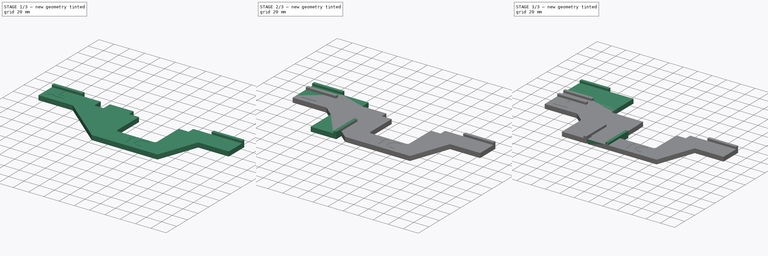
[diagram: build sequence overview — one tinted view per stage of 3, left to right]
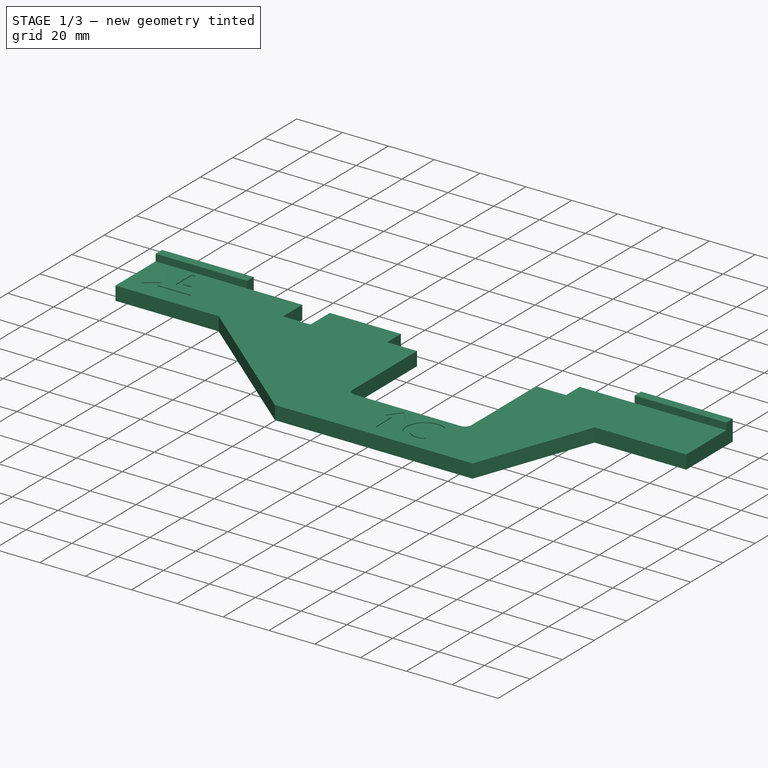
[diagram: stage 1 of 3 — iso view after this stage's code; geometry added in this stage tinted green]
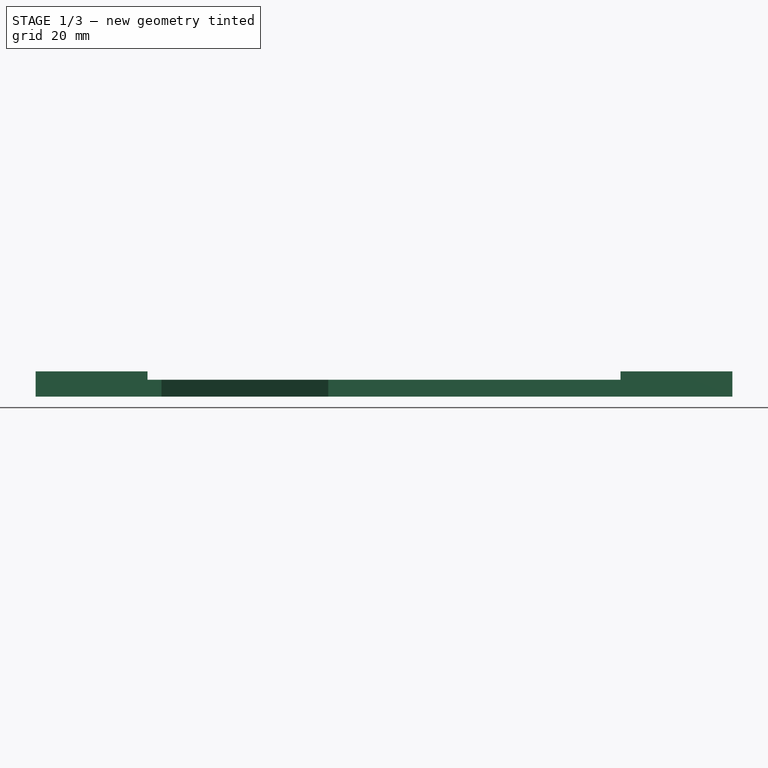
[diagram: stage 1 of 3 — front view after this stage's code; geometry added in this stage tinted green]
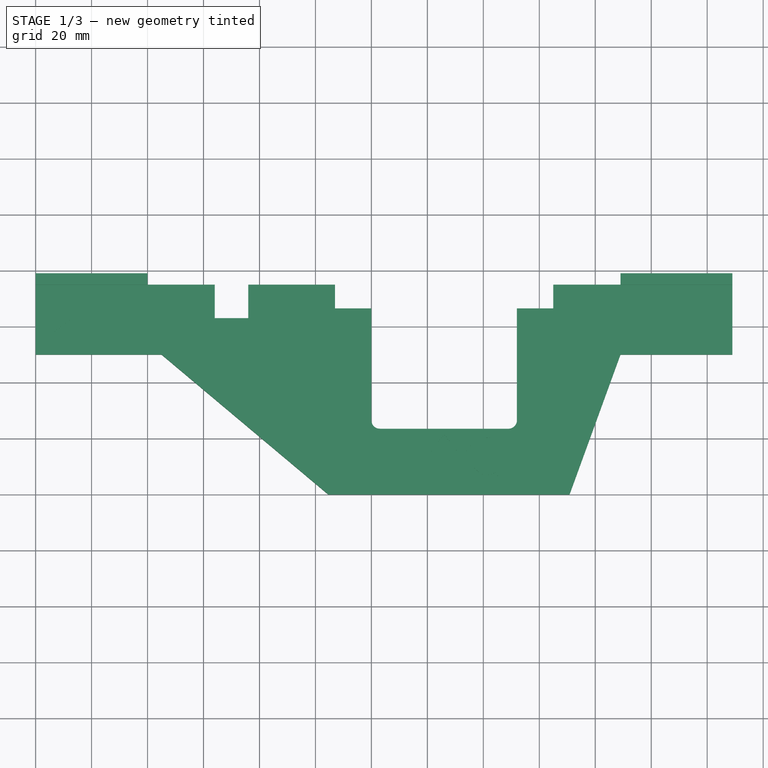
[diagram: stage 1 of 3 — top view after this stage's code; geometry added in this stage tinted green]
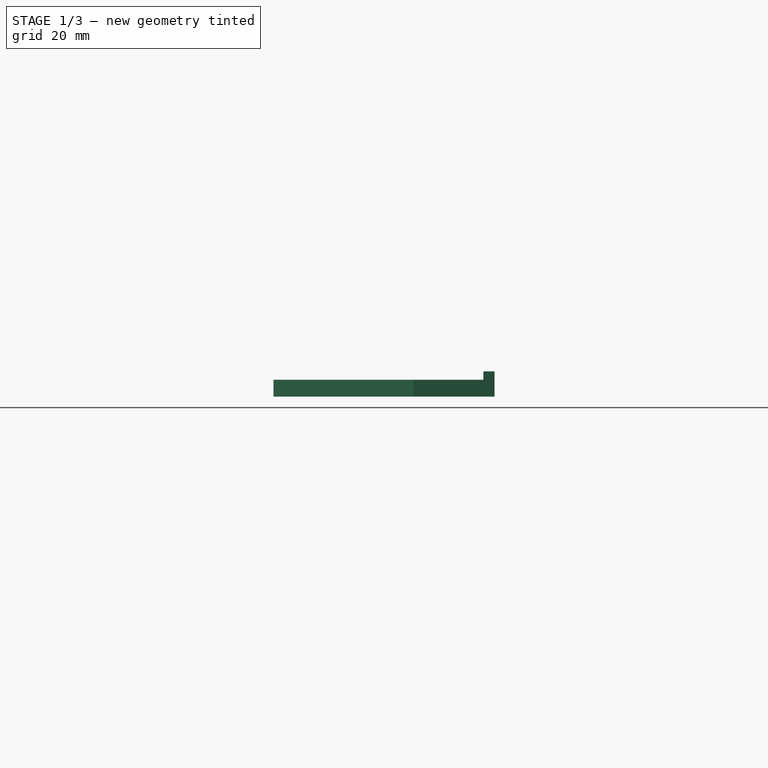
[diagram: stage 1 of 3 — right view after this stage's code; geometry added in this stage tinted green]
FCSTD DOCUMENT  (FreeCAD 1.0R39109 (Git))
Label: DeckSheet
License: All rights reserved
LicenseURL: https://en.wikipedia.org/wiki/All_rights_reserved
objects: Sketcher::SketchObject×8, PartDesign::Pad×6, PartDesign::Body×3, PartDesign::Pocket×2
note: 43 computed .brp shape members not serialized (recipe doc carries the construction recipe); baked Part::Feature solids carry a one-line shape summary decoded from their .brp

FEATURE [PartDesign::Body] Body001  label="CableCorner"
  AllowCompound = false
  Group = -> [Sketch002,Pad002,Sketch003,Pad003,Sketch004,Pocket]
  Origin = -> Origin001
  Tip = -> Pocket
FEATURE [Sketcher::SketchObject] Sketch006
  ArcFitTolerance = 1e-06
  AttachmentSupport = -> [XY_Plane002]
  FullyConstrained = true
  MakeInternals = false
  MapMode = 5
  sketch-geometry (24):
    g0: LineSegment StartX=0 StartY=75 StartZ=0 EndX=64 EndY=75 EndZ=0
    g1: LineSegment StartX=64 StartY=75 StartZ=0 EndX=64 EndY=63 EndZ=0
    g2: LineSegment StartX=64 StartY=63 StartZ=0 EndX=76 EndY=63 EndZ=0
    g3: LineSegment StartX=76 StartY=63 StartZ=0 EndX=76 EndY=75 EndZ=0
    g4: LineSegment StartX=76 StartY=75 StartZ=0 EndX=107 EndY=75 EndZ=0
    g5: LineSegment StartX=107 StartY=75 StartZ=0 EndX=107 EndY=66.5 EndZ=0
    g6: LineSegment StartX=107 StartY=66.5 StartZ=0 EndX=120 EndY=66.5 EndZ=0
    g7: LineSegment StartX=120 StartY=66.5 StartZ=0 EndX=120 EndY=26.5 EndZ=0
    g8: LineSegment StartX=123 StartY=23.5 StartZ=0 EndX=169 EndY=23.5 EndZ=0
    g9: LineSegment StartX=172 StartY=26.5 StartZ=0 EndX=172 EndY=66.5 EndZ=0
    g10: LineSegment StartX=172 StartY=66.5 StartZ=0 EndX=185 EndY=66.5 EndZ=0
    g11: LineSegment StartX=185 StartY=66.5 StartZ=0 EndX=185 EndY=75 EndZ=0
    g12: LineSegment StartX=185 StartY=75 StartZ=0 EndX=249 EndY=75 EndZ=0
    g13: LineSegment StartX=249 StartY=75 StartZ=0 EndX=249 EndY=50 EndZ=0
    g14: LineSegment StartX=190.801 StartY=0 StartZ=0 EndX=104.588 EndY=0 EndZ=0
    g15: LineSegment StartX=0 StartY=50 StartZ=0 EndX=0 EndY=75 EndZ=0
    g16: ArcOfCircle CenterX=123 CenterY=26.5 CenterZ=0 NormalX=0 NormalY=0 NormalZ=1 AngleXU=0 Radius=3 StartAngle=3.14159 EndAngle=4.71239
    g17: GeomPoint [constr] X=120 Y=23.5 Z=0
    g18: ArcOfCircle CenterX=169 CenterY=26.5 CenterZ=0 NormalX=0 NormalY=0 NormalZ=1 AngleXU=0 Radius=3 StartAngle=4.71239 EndAngle=6.28319
    g19: GeomPoint [constr] X=172 Y=23.5 Z=0
    g20: LineSegment StartX=0 StartY=50 StartZ=0 EndX=45 EndY=50 EndZ=0
    g21: LineSegment StartX=249 StartY=50 StartZ=0 EndX=209 EndY=50 EndZ=0
    g22: LineSegment StartX=209 StartY=50 StartZ=0 EndX=190.801 EndY=0 EndZ=0
    g23: LineSegment StartX=104.588 StartY=0 StartZ=0 EndX=45 EndY=50 EndZ=0
  constraints (68):
    c: Horizontal(g0)
    c: Coincident(g1,g0)
    c: Vertical(g1)
    c: Horizontal(g2)
    c: Vertical(g3)
    c: Horizontal(g4)
    c: Vertical(g5)
    c: Coincident(g6,g5)
    c: Horizontal(g6)
    c: Vertical(g7)
    c: Horizontal(g8)
    c: Vertical(g9)
    c: Horizontal(g10)
    c: Coincident(g11,g10)
    c: Vertical(g11)
    c: Coincident(g12,g11)
    c: Horizontal(g12)
    c: Coincident(g13,g12)
    c: Vertical(g13)
    c: Horizontal(g14)
    c: Coincident(g15,g0)
    c: Vertical(g15)
    c: Coincident(g3,g4)
    c: Coincident(g5,g4)
    c: Coincident(g3,g2)
    c: Coincident(g2,g1)
    c: Coincident(g6,g7)
    c: Coincident(g10,g9)
    c: Horizontal(g0,g3)
    c: Horizontal(g6,g9)
    c: Horizontal(g11,g4)
    c: DistanceY(g3,g3) = 12
    c: DistanceX(g2,g2) = 12
    c: DistanceX(g4,g4) = 31
    c: DistanceY(g5,g5) = 8.5
    c: DistanceX(g0,g0) = 64
    c: DistanceX(g6,g6) = 13
    c: Equal(g6,g10)
    c: DistanceX(g12,g12) = 64
    c: DistanceY(g15,g15) = 25
    c: PointOnObject(g17,g7)
    c: PointOnObject(g17,g8)
    c: Tangent(g7,g16) = -1.5708
    c: Tangent(g8,g16) = -1.5708
    c: Radius(g16) = 3
    c: PointOnObject(g19,g8)
    c: PointOnObject(g19,g9)
    c: Tangent(g8,g18) = -1.5708
    c: Tangent(g9,g18) = -1.5708
    c: Equal(g16,g18)
    c: DistanceX(g7,g9) = 52
    c: DistanceY(g8,g6) = 43
    c: PointOnObject(g0,g-2)
    c: DistanceY(g14,g15) = 50
    c: PointOnObject(g14,g-1)
    c: Coincident(g20,g15)
    c: Horizontal(g20)
    c: Coincident(g21,g13)
    c: Horizontal(g21)
    c: Coincident(g22,g21)
    c: Coincident(g22,g14)
    c: Coincident(g23,g14)
    c: Coincident(g23,g20)
    c: Horizontal(g13,g15)
    c: DistanceX(g20,g20) = 45
    c: DistanceX(g21,g21) = 40
    c: Angle(g22,g14) = 1.91986
    c: Angle(g14,g23) = 2.44346
FEATURE [PartDesign::Pad] Pad004
  Direction = (0,0,1)
  Length = 6
  Length2 = 10
  Profile = -> Sketch006
  ReferenceAxis = -> Sketch006 [N_Axis]
  Refine = true
  Suppressed = false
  Type = 0
FEATURE [Sketcher::SketchObject] Sketch007
  ArcFitTolerance = 1e-06
  AttachmentSupport = -> [XY_Plane002]
  ExternalGeometry = -> [Pad004]
  FullyConstrained = true
  MakeInternals = false
  MapMode = 5
  sketch-geometry (8):
    g0: LineSegment StartX=0 StartY=75 StartZ=0 EndX=40 EndY=75 EndZ=0
    g1: LineSegment StartX=40 StartY=75 StartZ=0 EndX=40 EndY=79 EndZ=0
    g2: LineSegment StartX=40 StartY=79 StartZ=0 EndX=0 EndY=79 EndZ=0
    g3: LineSegment StartX=0 StartY=79 StartZ=0 EndX=0 EndY=75 EndZ=0
    g4: LineSegment StartX=209 StartY=75 StartZ=0 EndX=249 EndY=75 EndZ=0
    g5: LineSegment StartX=249 StartY=75 StartZ=0 EndX=249 EndY=79 EndZ=0
    g6: LineSegment StartX=249 StartY=79 StartZ=0 EndX=209 EndY=79 EndZ=0
    g7: LineSegment StartX=209 StartY=79 StartZ=0 EndX=209 EndY=75 EndZ=0
  constraints (22):
    c: Coincident(g0,g1)
    c: Coincident(g1,g2)
    c: Coincident(g2,g3)
    c: Coincident(g3,g0)
    c: Horizontal(g0)
    c: Horizontal(g2)
    c: Vertical(g1)
    c: Vertical(g3)
    c: Coincident(g4,g5)
    c: Coincident(g5,g6)
    c: Coincident(g6,g7)
    c: Coincident(g7,g4)
    c: Horizontal(g4)
    c: Horizontal(g6)
    c: Vertical(g5)
    c: Vertical(g7)
    c: Distance(g3,g3) = 4
    c: DistanceX(g2,g2) = 40
    c: Distance(g7,g7) = 4
    c: DistanceX(g6,g6) = 40
    c: Coincident(g4,g-4)
    c: Coincident(g-3,g0)
FEATURE [PartDesign::Pad] Pad005
  BaseFeature = -> Pad004
  Direction = (0,0,1)
  Length = 9
  Length2 = 10
  Profile = -> Sketch007
  ReferenceAxis = -> Sketch007 [N_Axis]
  Refine = true
  Suppressed = false
  Type = 0
FEATURE [Sketcher::SketchObject] Sketch008
  ArcFitTolerance = 1e-06
  AttachmentSupport = -> [Pad005]
  ExternalGeometry = -> [Pad005]
  FullyConstrained = true
  MakeInternals = false
  MapMode = 5
  Placement = pos=(0,0,6) rot=(0,0,1;0rad)
  sketch-geometry (24):
    g0: LineSegment StartX=17 StartY=73 StartZ=0 EndX=17 EndY=63 EndZ=0
    g1: LineSegment StartX=17 StartY=63 StartZ=0 EndX=23 EndY=63 EndZ=0
    g2: LineSegment StartX=23 StartY=63 StartZ=0 EndX=23 EndY=65 EndZ=0
    g3: LineSegment StartX=23 StartY=65 StartZ=0 EndX=19 EndY=65 EndZ=0
    g4: LineSegment StartX=19 StartY=65 StartZ=0 EndX=19 EndY=73 EndZ=0
    g5: LineSegment StartX=19 StartY=73 StartZ=0 EndX=17 EndY=73 EndZ=0
    g6: LineSegment StartX=12 StartY=62.2 StartZ=0 EndX=6 EndY=57.6 EndZ=0
    g7: LineSegment StartX=6 StartY=57.6 StartZ=0 EndX=12 EndY=53 EndZ=0
    g8: LineSegment StartX=12 StartY=53 StartZ=0 EndX=12 EndY=56.2 EndZ=0
    g9: LineSegment StartX=12 StartY=56.2 StartZ=0 EndX=27 EndY=56.2 EndZ=0
    g10: LineSegment StartX=27 StartY=56.2 StartZ=0 EndX=27 EndY=59 EndZ=0
    g11: LineSegment StartX=27 StartY=59 StartZ=0 EndX=12 EndY=59 EndZ=0
    g12: LineSegment StartX=12 StartY=59 StartZ=0 EndX=12 EndY=62.2 EndZ=0
    g13: LineSegment StartX=141.4 StartY=15.5 StartZ=0 EndX=146 EndY=21.5 EndZ=0
    g14: LineSegment StartX=146 StartY=21.5 StartZ=0 EndX=150.6 EndY=15.5 EndZ=0
    g15: LineSegment StartX=150.6 StartY=15.5 StartZ=0 EndX=147.4 EndY=15.5 EndZ=0
    g16: LineSegment StartX=147.4 StartY=15.5 StartZ=0 EndX=147.4 EndY=5.5 EndZ=0
    g17: LineSegment StartX=147.4 StartY=5.5 StartZ=0 EndX=144.6 EndY=5.5 EndZ=0
    g18: LineSegment StartX=144.6 StartY=5.5 StartZ=0 EndX=144.6 EndY=15.5 EndZ=0
    g19: LineSegment StartX=144.6 StartY=15.5 StartZ=0 EndX=141.4 EndY=15.5 EndZ=0
    g20: ArcOfCircle CenterX=161.4 CenterY=12.2471 CenterZ=0 NormalX=0 NormalY=0 NormalZ=1 AngleXU=0 Radius=8 StartAngle=1.00356 EndAngle=5.27962
    g21: ArcOfCircle CenterX=161.4 CenterY=12.2471 CenterZ=0 NormalX=0 NormalY=0 NormalZ=1 AngleXU=0 Radius=5.26504 StartAngle=0.911085 EndAngle=5.3721
    g22: LineSegment StartX=164.627 StartY=8.08686 StartZ=0 EndX=165.698 EndY=5.5 EndZ=0
    g23: LineSegment StartX=164.627 StartY=16.4074 StartZ=0 EndX=165.698 EndY=18.9943 EndZ=0
  constraints (73):
    c: Vertical(g0)
    c: Coincident(g1,g0)
    c: Horizontal(g1)
    c: Coincident(g2,g1)
    c: Coincident(g3,g2)
    c: Vertical(g4)
    c: Coincident(g5,g0)
    c: Horizontal(g5)
    c: Coincident(g8,g7)
    c: Vertical(g8)
    c: Coincident(g9,g8)
    c: Horizontal(g9)
    c: Coincident(g10,g9)
    c: Horizontal(g11)
    c: Coincident(g12,g11)
    c: Coincident(g12,g6)
    c: Horizontal(g3)
    c: Coincident(g3,g4)
    c: Coincident(g4,g5)
    c: Vertical(g2)
    c: DistanceY(g0,g0) = 10
    c: DistanceX(g1,g1) = 6
    c: DistanceY(g2,g2) = 2
    c: Equal(g2,g5)
    c: Vertical(g12)
    c: Vertical(g10)
    c: Coincident(g11,g10)
    c: Coincident(g7,g6)
    c: Distance(g10,g10) = 2.8
    c: DistanceX(g11,g11) = 15
    c: Vertical(g8,g11)
    c: Equal(g12,g8)
    c: Equal(g6,g7)
    c: DistanceX(g6,g7) = 6
    c: DistanceX(g6,g0) = 5
    c: DistanceY(g8,g8) = 3.2
    c: DistanceY(g10,g1) = 4
    c: DistanceX(g-3,g0) = 17
    c: DistanceY(g0,g-3) = 2
    c: Coincident(g14,g13)
    c: Coincident(g15,g14)
    c: Horizontal(g15)
    c: Coincident(g16,g15)
    c: Vertical(g16)
    c: Coincident(g17,g16)
    c: Horizontal(g17)
    c: Coincident(g18,g17)
    c: Vertical(g18)
    c: Coincident(g19,g18)
    c: Coincident(g19,g13)
    c: Horizontal(g19)
    c: Horizontal(g15,g18)
    c: Distance(g19,g19) = 3.2
    c: Equal(g15,g19)
    c: DistanceY(g13,g13) = 6
    c: Distance(g17,g17) = 2.8
    c: DistanceY(g16,g16) = 10
    c: Equal(g13,g14)
    c: DistanceX(g-4,g13) = 26
    c: DistanceY(g13,g-4) = 45
    c: Radius(g20) = 8
    c: Horizontal(g20,g16)
    c: Vertical(g20,g20)
    c: Angle(g20) = 4.27606
    c: Coincident(g21,g20)
    c: Coincident(g22,g21)
    c: Coincident(g22,g20)
    c: Coincident(g23,g21)
    c: Coincident(g23,g20)
    c: Vertical(g21,g21)
    c: Angle(g22,g23) = 2.35619
    c: Distance(g23,g23) = 2.8
    c: DistanceX(g16,g20) = 14
FEATURE [PartDesign::Pocket] Pocket001
  BaseFeature = -> Pad005
  Direction = (0,0,-1)
  Length = 0.4
  Length2 = 5
  Profile = -> Sketch008
  ReferenceAxis = -> Sketch008 [N_Axis]
  Refine = true
  Suppressed = false
  Type = 0
FEATURE [PartDesign::Body] Body002  label="RearMotor"
  AllowCompound = false
  Group = -> [Sketch006,Pad004,Sketch007,Pad005,Sketch008,Pocket001]
  Origin = -> Origin002
  Tip = -> Pocket001
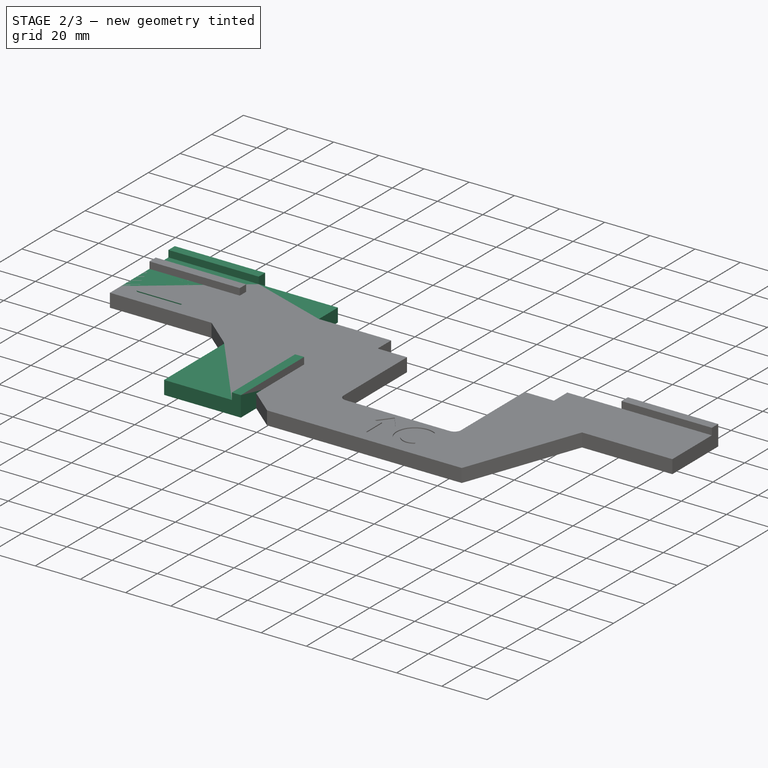
[diagram: stage 2 of 3 — iso view after this stage's code; geometry added in this stage tinted green]
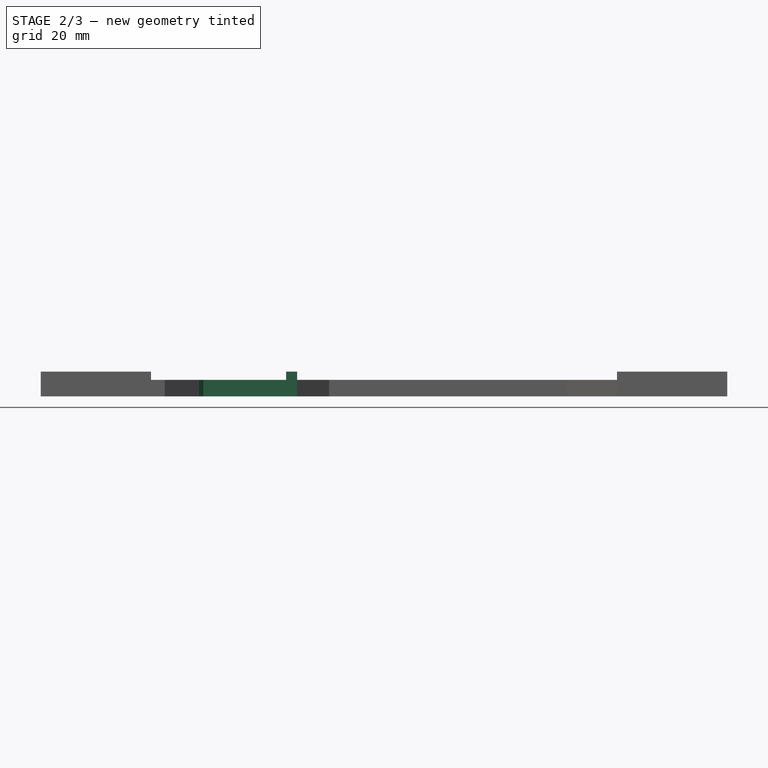
[diagram: stage 2 of 3 — front view after this stage's code; geometry added in this stage tinted green]
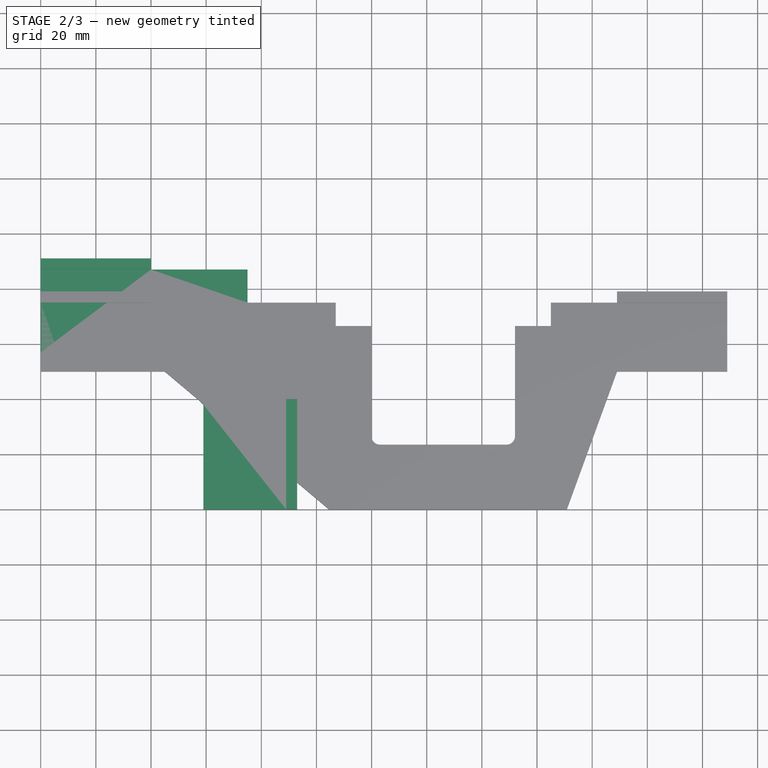
[diagram: stage 2 of 3 — top view after this stage's code; geometry added in this stage tinted green]
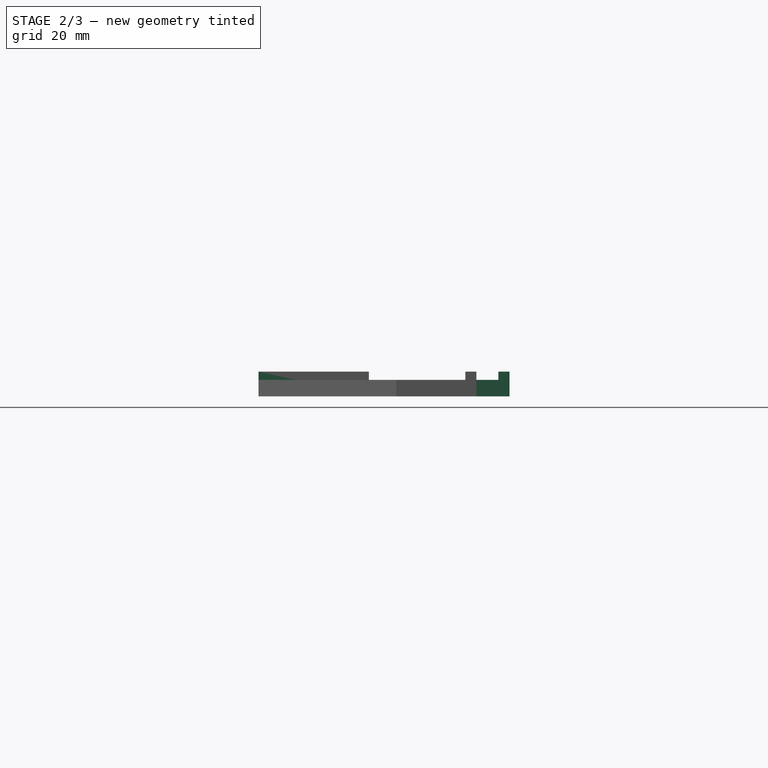
[diagram: stage 2 of 3 — right view after this stage's code; geometry added in this stage tinted green]
FEATURE [PartDesign::Body] Body  label="LeftRightMotor"
  AllowCompound = false
  Group = -> [Sketch,Pad,Sketch001,Pad001]
  Origin = -> Origin
  Tip = -> Pad001
FEATURE [Sketcher::SketchObject] Sketch002
  ArcFitTolerance = 1e-06
  AttachmentSupport = -> [XY_Plane001]
  FullyConstrained = true
  MakeInternals = false
  MapMode = 5
  sketch-geometry (9):
    g0: LineSegment StartX=0 StartY=87 StartZ=0 EndX=75 EndY=87 EndZ=0
    g1: LineSegment StartX=75 StartY=87 StartZ=0 EndX=75 EndY=75 EndZ=0
    g2: LineSegment StartX=75 StartY=75 StartZ=0 EndX=89 EndY=75 EndZ=0
    g3: LineSegment StartX=89 StartY=75 StartZ=0 EndX=89 EndY=0 EndZ=0
    g4: LineSegment StartX=0 StartY=87 StartZ=0 EndX=0 EndY=57 EndZ=0
    g5: LineSegment StartX=89 StartY=0 StartZ=0 EndX=59 EndY=0 EndZ=0
    g6: LineSegment StartX=59 StartY=0 StartZ=0 EndX=59 EndY=38 EndZ=0
    g7: LineSegment StartX=0 StartY=57 StartZ=0 EndX=40 EndY=57 EndZ=0
    g8: LineSegment StartX=40 StartY=57 StartZ=0 EndX=59 EndY=38 EndZ=0
  constraints (27):
    c: PointOnObject(g0,g-2)
    c: Horizontal(g0)
    c: Vertical(g1)
    c: Horizontal(g2)
    c: Coincident(g3,g2)
    c: PointOnObject(g3,g-1)
    c: Vertical(g3)
    c: Coincident(g0,g1)
    c: Coincident(g1,g2)
    c: DistanceY(g1,g1) = 12
    c: DistanceX(g2,g2) = 14
    c: DistanceX(g0,g0) = 75
    c: DistanceY(g3,g3) = 75
    c: Coincident(g4,g0)
    c: PointOnObject(g4,g-2)
    c: Coincident(g5,g3)
    c: PointOnObject(g5,g-1)
    c: Coincident(g6,g5)
    c: Coincident(g7,g4)
    c: Horizontal(g7)
    c: Coincident(g8,g7)
    c: Coincident(g8,g6)
    c: Vertical(g6)
    c: Angle(g7,g8) = 2.35619
    c: DistanceY(g4,g4) = 30
    c: Equal(g5,g4)
    c: Distance(g7,g7) = 40
FEATURE [PartDesign::Pad] Pad002
  Direction = (0,0,1)
  Length = 6
  Length2 = 10
  Profile = -> Sketch002
  ReferenceAxis = -> Sketch002 [N_Axis]
  Refine = true
  Suppressed = false
  Type = 0
FEATURE [Sketcher::SketchObject] Sketch003
  ArcFitTolerance = 1e-06
  AttachmentSupport = -> [XY_Plane001]
  ExternalGeometry = -> [Pad002]
  FullyConstrained = true
  MakeInternals = false
  MapMode = 5
  sketch-geometry (8):
    g0: LineSegment StartX=0 StartY=87 StartZ=0 EndX=40 EndY=87 EndZ=0
    g1: LineSegment StartX=40 StartY=87 StartZ=0 EndX=40 EndY=91 EndZ=0
    g2: LineSegment StartX=40 StartY=91 StartZ=0 EndX=0 EndY=91 EndZ=0
    g3: LineSegment StartX=0 StartY=91 StartZ=0 EndX=0 EndY=87 EndZ=0
    g4: LineSegment StartX=89 StartY=0 StartZ=0 EndX=93 EndY=0 EndZ=0
    g5: LineSegment StartX=93 StartY=0 StartZ=0 EndX=93 EndY=40 EndZ=0
    g6: LineSegment StartX=93 StartY=40 StartZ=0 EndX=89 EndY=40 EndZ=0
    g7: LineSegment StartX=89 StartY=40 StartZ=0 EndX=89 EndY=0 EndZ=0
  constraints (22):
    c: Coincident(g0,g1)
    c: Coincident(g1,g2)
    c: Coincident(g2,g3)
    c: Coincident(g3,g0)
    c: Horizontal(g0)
    c: Horizontal(g2)
    c: Vertical(g1)
    c: Vertical(g3)
    c: Coincident(g4,g5)
    c: Coincident(g5,g6)
    c: Coincident(g6,g7)
    c: Coincident(g7,g4)
    c: Horizontal(g4)
    c: Horizontal(g6)
    c: Vertical(g5)
    c: Vertical(g7)
    c: Distance(g3,g3) = 4
    c: DistanceX(g2,g2) = 40
    c: Coincident(g4,g-4)
    c: Coincident(g-3,g0)
    c: Equal(g5,g2)
    c: Equal(g4,g3)
FEATURE [PartDesign::Pad] Pad003
  BaseFeature = -> Pad002
  Direction = (0,0,1)
  Length = 9
  Length2 = 10
  Profile = -> Sketch003
  ReferenceAxis = -> Sketch003 [N_Axis]
  Refine = true
  Suppressed = false
  Type = 0
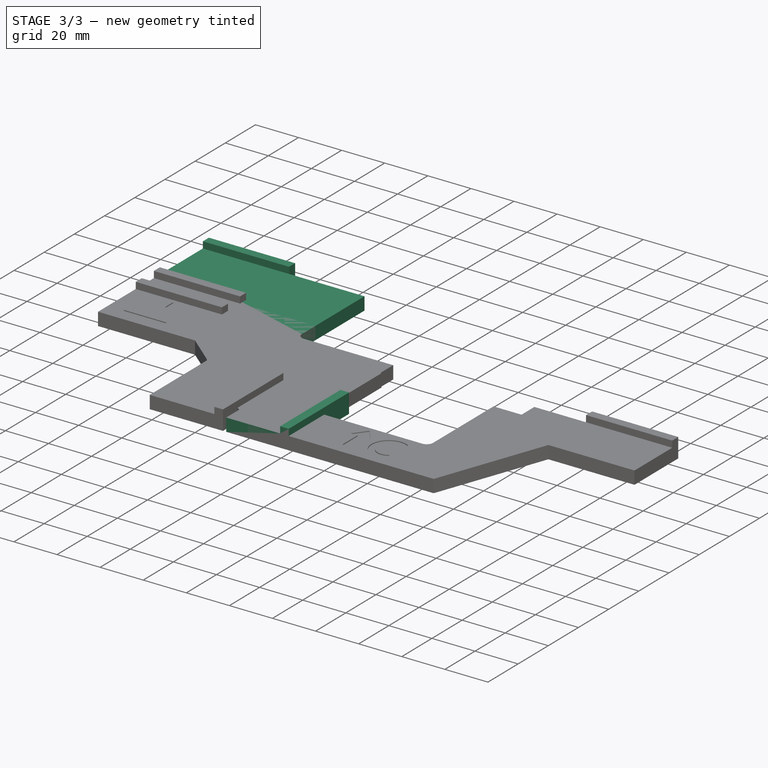
[diagram: stage 3 of 3 — iso view after this stage's code; geometry added in this stage tinted green]
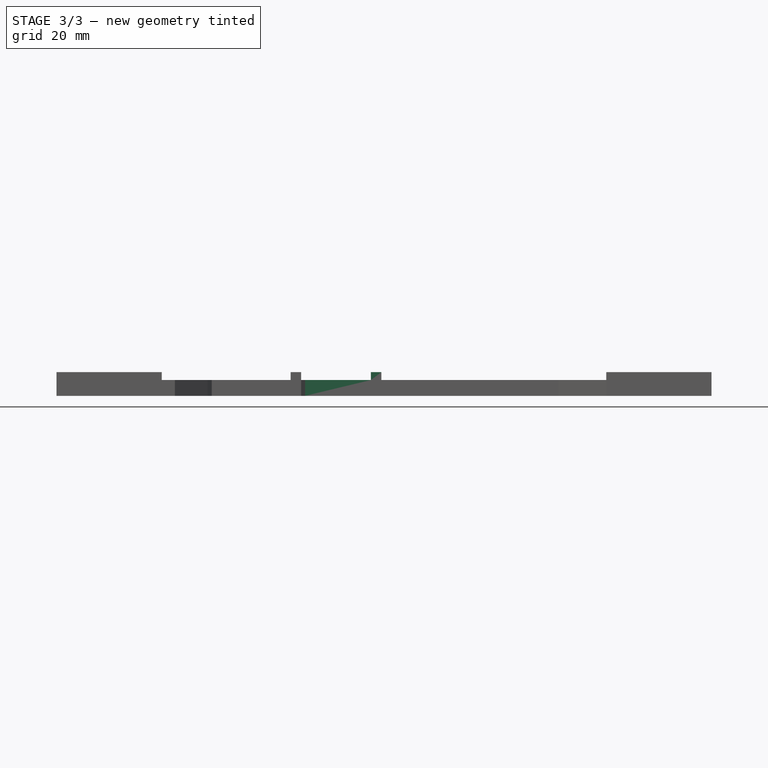
[diagram: stage 3 of 3 — front view after this stage's code; geometry added in this stage tinted green]
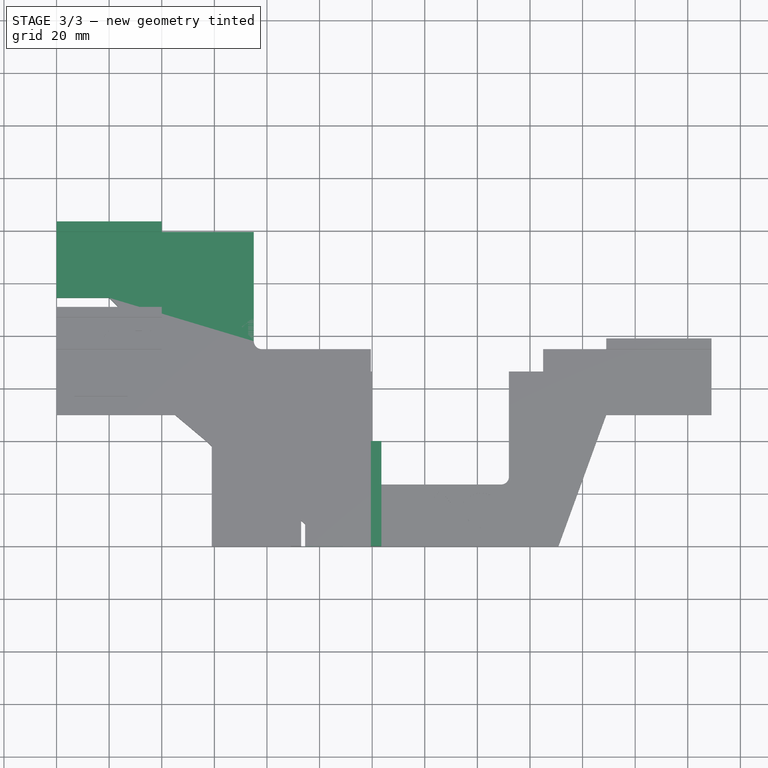
[diagram: stage 3 of 3 — top view after this stage's code; geometry added in this stage tinted green]
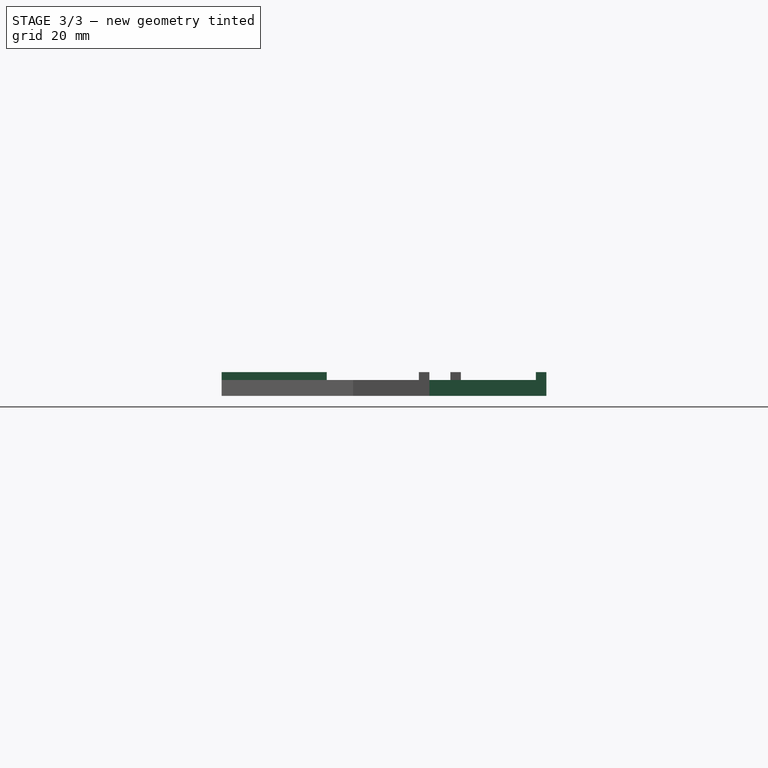
[diagram: stage 3 of 3 — right view after this stage's code; geometry added in this stage tinted green]
FEATURE [Sketcher::SketchObject] Sketch
  ArcFitTolerance = 1e-06
  AttachmentSupport = -> [XY_Plane]
  FullyConstrained = true
  MakeInternals = false
  MapMode = 5
  sketch-geometry (11):
    g0: LineSegment StartX=0 StartY=119.5 StartZ=0 EndX=75 EndY=119.5 EndZ=0
    g1: LineSegment StartX=75 StartY=119.5 StartZ=0 EndX=75 EndY=78 EndZ=0
    g2: LineSegment StartX=78 StartY=75 StartZ=0 EndX=119.5 EndY=75 EndZ=0
    g3: LineSegment StartX=119.5 StartY=75 StartZ=0 EndX=119.5 EndY=0 EndZ=0
    g4: ArcOfCircle CenterX=78 CenterY=78 CenterZ=0 NormalX=0 NormalY=0 NormalZ=1 AngleXU=0 Radius=3 StartAngle=3.14159 EndAngle=4.71239
    g5: GeomPoint [constr] X=75 Y=75 Z=0
    g6: LineSegment StartX=119.5 StartY=0 StartZ=0 EndX=94.5 EndY=0 EndZ=0
    g7: LineSegment StartX=0 StartY=119.5 StartZ=0 EndX=0 EndY=94.5 EndZ=0
    g8: LineSegment StartX=0 StartY=94.5 StartZ=0 EndX=20 EndY=94.5 EndZ=0
    g9: LineSegment StartX=94.5 StartY=0 StartZ=0 EndX=94.5 EndY=20 EndZ=0
    g10: LineSegment StartX=94.5 StartY=20 StartZ=0 EndX=20 EndY=94.5 EndZ=0
  constraints (31):
    c: PointOnObject(g0,g-2)
    c: Horizontal(g0)
    c: Coincident(g1,g0)
    c: Vertical(g1)
    c: Horizontal(g2)
    c: Coincident(g3,g2)
    c: PointOnObject(g3,g-1)
    c: Vertical(g3)
    c: PointOnObject(g5,g1)
    c: PointOnObject(g5,g2)
    c: Tangent(g1,g4) = -1.5708
    c: Tangent(g2,g4) = -1.5708
    c: Radius(g4) = 3
    c: DistanceX(g2,g2) = 41.5
    c: DistanceY(g1,g1) = 41.5
    c: DistanceX(g0,g0) = 75
    c: Equal(g0,g3)
    c: Coincident(g6,g3)
    c: PointOnObject(g6,g-1)
    c: Coincident(g7,g0)
    c: PointOnObject(g7,g-2)
    c: Horizontal(g8)
    c: Coincident(g9,g6)
    c: Vertical(g9)
    c: Coincident(g10,g8)
    c: Angle(g8,g10) = 2.35619
    c: DistanceY(g7,g7) = 25
    c: Coincident(g7,g8)
    c: Coincident(g9,g10)
    c: Equal(g8,g9)
    c: Distance(g8,g8) = 20
FEATURE [PartDesign::Pad] Pad
  Direction = (0,0,1)
  Length = 6
  Length2 = 10
  Profile = -> Sketch
  ReferenceAxis = -> Sketch [N_Axis]
  Refine = true
  Suppressed = false
  Type = 0
FEATURE [Sketcher::SketchObject] Sketch001
  ArcFitTolerance = 1e-06
  AttachmentSupport = -> [XY_Plane]
  ExternalGeometry = -> [Pad]
  FullyConstrained = true
  MakeInternals = false
  MapMode = 5
  sketch-geometry (8):
    g0: LineSegment StartX=0 StartY=119.5 StartZ=0 EndX=40 EndY=119.5 EndZ=0
    g1: LineSegment StartX=40 StartY=119.5 StartZ=0 EndX=40 EndY=123.5 EndZ=0
    g2: LineSegment StartX=40 StartY=123.5 StartZ=0 EndX=0 EndY=123.5 EndZ=0
    g3: LineSegment StartX=0 StartY=123.5 StartZ=0 EndX=0 EndY=119.5 EndZ=0
    g4: LineSegment StartX=119.5 StartY=0 StartZ=0 EndX=123.5 EndY=0 EndZ=0
    g5: LineSegment StartX=123.5 StartY=0 StartZ=0 EndX=123.5 EndY=40 EndZ=0
    g6: LineSegment StartX=123.5 StartY=40 StartZ=0 EndX=119.5 EndY=40 EndZ=0
    g7: LineSegment StartX=119.5 StartY=40 StartZ=0 EndX=119.5 EndY=0 EndZ=0
  constraints (22):
    c: Coincident(g0,g1)
    c: Coincident(g1,g2)
    c: Coincident(g2,g3)
    c: Coincident(g3,g0)
    c: Horizontal(g0)
    c: Horizontal(g2)
    c: Vertical(g1)
    c: Vertical(g3)
    c: Distance(g3,g3) = 4
    c: DistanceX(g2,g2) = 40
    c: Coincident(g4,g5)
    c: Coincident(g5,g6)
    c: Coincident(g6,g7)
    c: Coincident(g7,g4)
    c: Horizontal(g4)
    c: Horizontal(g6)
    c: Vertical(g5)
    c: Vertical(g7)
    c: Coincident(g-4,g0)
    c: Coincident(g4,g-3)
    c: Equal(g3,g4)
    c: Equal(g5,g2)
FEATURE [PartDesign::Pad] Pad001
  BaseFeature = -> Pad
  Direction = (0,0,1)
  Length = 9
  Length2 = 10
  Profile = -> Sketch001
  ReferenceAxis = -> Sketch001 [N_Axis]
  Refine = true
  Suppressed = false
  Type = 0
FEATURE [Sketcher::SketchObject] Sketch004
  ArcFitTolerance = 1e-06
  AttachmentSupport = -> [Pad003]
  ExternalGeometry = -> [Pad003]
  FullyConstrained = true
  MakeInternals = false
  MapMode = 5
  Placement = pos=(0,0,6) rot=(0,0,1;0rad)
  sketch-geometry (40):
    g0: LineSegment StartX=18.5 StartY=68 StartZ=0 EndX=18.5 EndY=77 EndZ=0
    g1: LineSegment StartX=21.5 StartY=68 StartZ=0 EndX=21.5 EndY=77 EndZ=0
    g2: LineSegment StartX=18.5 StartY=68 StartZ=0 EndX=21.5 EndY=68 EndZ=0
    g3: LineSegment StartX=21.5 StartY=77 StartZ=0 EndX=24.5 EndY=77 EndZ=0
    g4: LineSegment StartX=24.5 StartY=77 StartZ=0 EndX=20 EndY=82 EndZ=0
    g5: LineSegment StartX=20 StartY=82 StartZ=0 EndX=15.5 EndY=77 EndZ=0
    g6: LineSegment StartX=15.5 StartY=77 StartZ=0 EndX=18.5 EndY=77 EndZ=0
    g7: LineSegment StartX=30 StartY=82 StartZ=0 EndX=30 EndY=68 EndZ=0
    g8: LineSegment StartX=30 StartY=82 StartZ=0 EndX=35.6 EndY=82 EndZ=0
    g9: LineSegment StartX=35.6 StartY=79.2 StartZ=0 EndX=32.8 EndY=79.2 EndZ=0
    g10: LineSegment StartX=32.8 StartY=79.2 StartZ=0 EndX=32.8 EndY=76.4 EndZ=0
    g11: LineSegment StartX=32.8 StartY=76.4 StartZ=0 EndX=35.6 EndY=76.4 EndZ=0
    g12: LineSegment StartX=30 StartY=68 StartZ=0 EndX=32.8 EndY=68 EndZ=0
    g13: LineSegment StartX=32.8 StartY=68 StartZ=0 EndX=32.8 EndY=73.6 EndZ=0
    g14: LineSegment StartX=32.8 StartY=73.6 StartZ=0 EndX=35.6 EndY=68 EndZ=0
    g15: LineSegment StartX=35.6 StartY=68 StartZ=0 EndX=38.4 EndY=68 EndZ=0
    g16: LineSegment StartX=38.4 StartY=68 StartZ=0 EndX=35.6 EndY=73.6 EndZ=0
    g17: ArcOfCircle CenterX=35.6 CenterY=77.8 CenterZ=0 NormalX=0 NormalY=0 NormalZ=1 AngleXU=0 Radius=1.4 StartAngle=4.71239 EndAngle=7.85398
    g18: ArcOfCircle CenterX=35.6 CenterY=77.8 CenterZ=0 NormalX=0 NormalY=0 NormalZ=1 AngleXU=0 Radius=4.2 StartAngle=4.71239 EndAngle=7.85398
    g19: ArcOfCircle CenterX=42.4 CenterY=71 CenterZ=0 NormalX=0 NormalY=0 NormalZ=1 AngleXU=0 Radius=3 StartAngle=6.08183 EndAngle=11.5477
    g20: ArcOfCircle CenterX=42.4 CenterY=71 CenterZ=0 NormalX=0 NormalY=0 NormalZ=1 AngleXU=0 Radius=1.7681 StartAngle=0.346224 EndAngle=2.79537
    g21: LineSegment StartX=44.0632 StartY=71.6 StartZ=0 EndX=40.7368 EndY=71.6 EndZ=0
    g22: LineSegment StartX=45.3394 StartY=70.4 StartZ=0 EndX=40.7368 EndY=70.4 EndZ=0
    g23: ArcOfCircle CenterX=42.4 CenterY=71 CenterZ=0 NormalX=0 NormalY=0 NormalZ=1 AngleXU=0 Radius=1.7681 StartAngle=3.48782 EndAngle=5.41075
    g24: LineSegment StartX=43.5368 StartY=69.6458 StartZ=0 EndX=43.9736 EndY=68.4458 EndZ=0
    g25: ArcOfCircle CenterX=49.6 CenterY=71 CenterZ=0 NormalX=0 NormalY=0 NormalZ=1 AngleXU=0 Radius=3 StartAngle=1.04848 EndAngle=5.2347
    g26: Circle CenterX=49.6 CenterY=71 CenterZ=0 NormalX=0 NormalY=0 NormalZ=1 AngleXU=0 Radius=1.7681
    g27: LineSegment StartX=51.0967 StartY=73.6 StartZ=0 EndX=51.0967 EndY=74 EndZ=0
    g28: LineSegment StartX=51.0967 StartY=74 StartZ=0 EndX=52.2967 EndY=74 EndZ=0
    g29: LineSegment StartX=52.2967 StartY=74 StartZ=0 EndX=52.2967 EndY=68 EndZ=0
    g30: LineSegment StartX=52.2967 StartY=68 StartZ=0 EndX=51.0967 EndY=68 EndZ=0
    g31: LineSegment StartX=51.0967 StartY=68.4 StartZ=0 EndX=51.0967 EndY=68 EndZ=0
    g32: LineSegment StartX=54.0967 StartY=68 StartZ=0 EndX=54.0967 EndY=74 EndZ=0
    g33: LineSegment StartX=54.0967 StartY=74 StartZ=0 EndX=55.2967 EndY=74 EndZ=0
    g34: LineSegment StartX=55.2967 StartY=74 StartZ=0 EndX=55.2967 EndY=73.6 EndZ=0
    g35: LineSegment StartX=54.0967 StartY=68 StartZ=0 EndX=55.2967 EndY=68 EndZ=0
    g36: LineSegment StartX=55.2967 StartY=68 StartZ=0 EndX=55.2967 EndY=72.0223 EndZ=0
    g37: ArcOfCircle CenterX=56.7933 CenterY=71 CenterZ=0 NormalX=0 NormalY=0 NormalZ=1 AngleXU=0 Radius=3 StartAngle=0.673361 EndAngle=2.09311
    g38: ArcOfCircle CenterX=56.7933 CenterY=71 CenterZ=0 NormalX=0 NormalY=0 NormalZ=1 AngleXU=0 Radius=1.8125 StartAngle=0.599271 EndAngle=2.54232
    g39: LineSegment StartX=59.1385 StartY=72.8708 StartZ=0 EndX=58.29 EndY=72.0223 EndZ=0
  constraints (119):
    c: Vertical(g0)
    c: Vertical(g1)
    c: Coincident(g2,g0)
    c: Coincident(g2,g1)
    c: Coincident(g3,g1)
    c: Horizontal(g3)
    c: Coincident(g5,g4)
    c: Coincident(g6,g5)
    c: Coincident(g6,g0)
    c: Horizontal(g6)
    c: Horizontal(g2)
    c: Horizontal(g0,g1)
    c: Coincident(g3,g4)
    c: Equal(g3,g6)
    c: Distance(g2,g2) = 3
    c: DistanceY(g0,g0) = 9
    c: Equal(g5,g4)
    c: DistanceY(g5,g4) = 5
    c: DistanceX(g-3,g4) = 20
    c: DistanceY(g4,g-3) = 5
    c: Distance(g3,g5) = 9
    c: Vertical(g7)
    c: Coincident(g8,g7)
    c: Horizontal(g8)
    c: Horizontal(g9)
    c: Coincident(g10,g9)
    c: Vertical(g10)
    c: Coincident(g11,g10)
    c: Horizontal(g11)
    c: Coincident(g12,g7)
    c: Horizontal(g12)
    c: Coincident(g13,g12)
    c: Vertical(g13)
    c: Coincident(g14,g13)
    c: Coincident(g15,g14)
    c: Horizontal(g15)
    c: Coincident(g16,g15)
    c: Coincident(g18,g17)
    c: Coincident(g18,g16)
    c: Horizontal(g14,g12)
    c: Equal(g12,g15)
    c: Vertical(g13,g10)
    c: Vertical(g11,g16)
    c: Distance(g12,g12) = 2.8
    c: DistanceY(g10,g10) = 2.8
    c: DistanceY(g9,g8) = 2.8
    c: DistanceY(g12,g13) = 5.6
    c: DistanceX(g9,g9) = 2.8
    c: Distance(g12,g14) = 2.8
    c: Tangent(g17,g9) = -1.5708
    c: Tangent(g17,g11) = -1.5708
    c: Tangent(g18,g8) = 1.5708
    c: Horizontal(g16,g13)
    c: Horizontal(g4,g7)
    c: DistanceX(g4,g7) = 10
    c: Coincident(g20,g19)
    c: Coincident(g21,g20)
    c: Coincident(g21,g20)
    c: Horizontal(g21)
    c: Coincident(g22,g19)
    c: Horizontal(g22)
    c: Coincident(g23,g19)
    c: Coincident(g23,g22)
    c: Coincident(g24,g23)
    c: Coincident(g24,g19)
    c: Symmetric(g20,g22,g19)
    c: Distance(g20,g22) = 1.2
    c: DistanceY(g24,g24) = 1.2
    c: Angle(g22,g24) = 1.91986
    c: DistanceX(g22,g23) = 2.8
    c: Radius(g19) = 3
    c: DistanceY(g15,g19) = 3
    c: DistanceX(g15,g19) = 4
    c: Coincident(g26,g25)
    c: Equal(g25,g19)
    c: Equal(g26,g20)
    c: Coincident(g27,g25)
    c: Vertical(g27)
    c: Coincident(g28,g27)
    c: Horizontal(g28)
    c: Coincident(g29,g28)
    c: Vertical(g29)
    c: Coincident(g30,g29)
    c: Horizontal(g30)
    c: Coincident(g31,g25)
    c: Coincident(g31,g30)
    c: Vertical(g31)
    c: Equal(g27,g31)
    c: Distance(g28,g28) = 1.2
    c: Horizontal(g19,g25)
    c: DistanceX(g19,g25) = 7.2
    c: Vertical(g25,g25)
    c: Tangent(g30,g25)
    c: Distance(g27,g27) = 0.4
    c: Vertical(g32)
    c: Coincident(g33,g32)
    c: Horizontal(g33)
    c: Vertical(g34)
    c: Coincident(g35,g32)
    c: Horizontal(g35)
    c: Vertical(g36)
    c: Coincident(g37,g34)
    c: Coincident(g38,g37)
    c: Coincident(g39,g37)
    c: Coincident(g39,g38)
    c: Distance(g39,g39) = 1.2
    c: Coincident(g33,g34)
    c: Distance(g35,g35) = 1.2
    c: Coincident(g36,g35)
    c: Coincident(g38,g36)
    c: Equal(g27,g34)
    c: Horizontal(g32,g28)
    c: Horizontal(g29,g32)
    c: Vertical(g34,g36)
    c: Tangent(g33,g37)
    c: Radius(g37) = 3
    c: Angle(g36,g39) = 2.35619
    c: DistanceX(g28,g32) = 1.8
    c: Horizontal(g38,g36)
FEATURE [PartDesign::Pocket] Pocket
  BaseFeature = -> Pad003
  Direction = (0,0,-1)
  Length = 0.4
  Length2 = 5
  Profile = -> Sketch004
  ReferenceAxis = -> Sketch004 [N_Axis]
  Refine = true
  Suppressed = false
  Type = 0
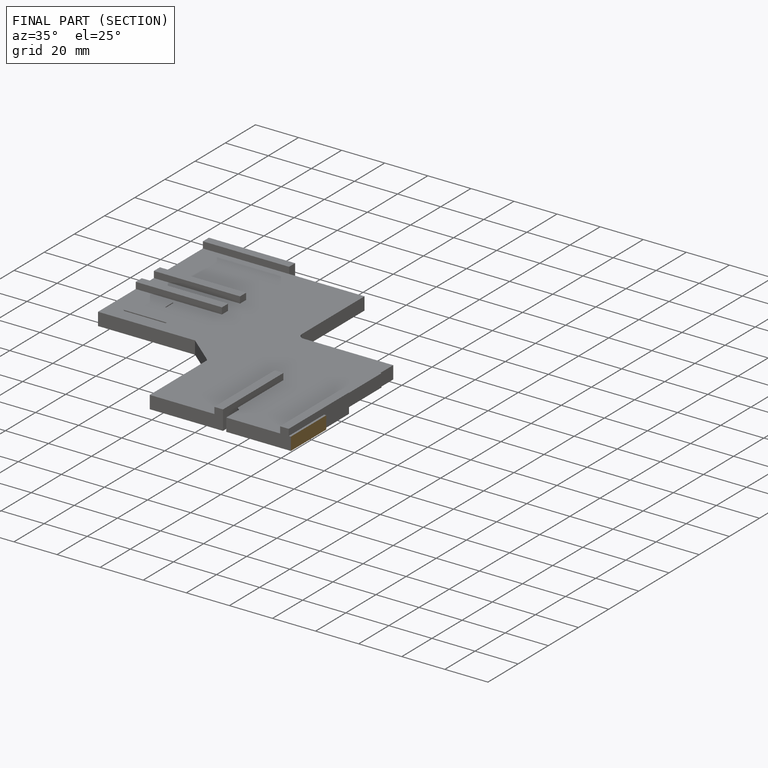
[diagram: finished part — half-section view (interior)]
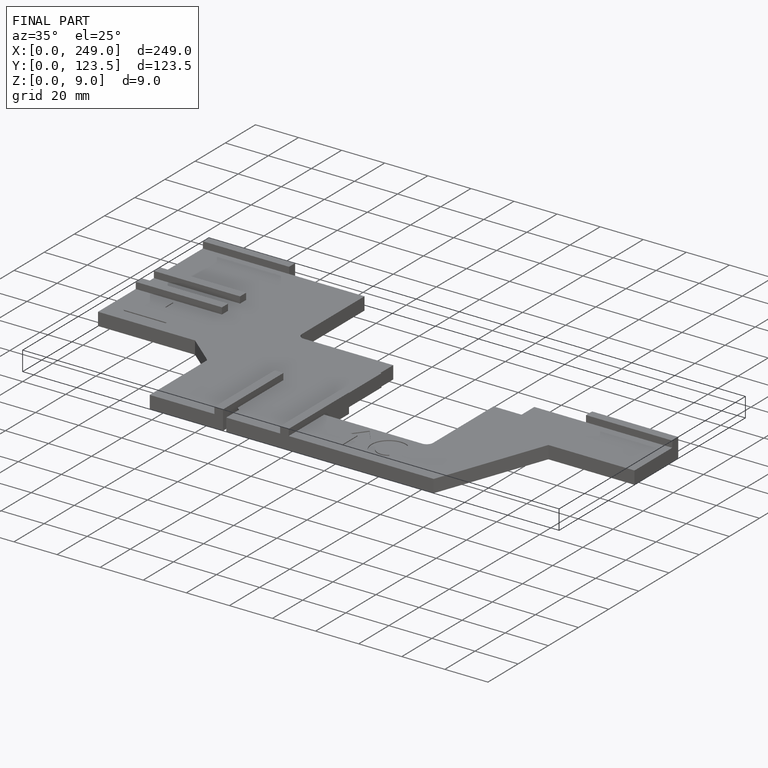
[diagram: finished part — iso view with bounding-box wireframe]
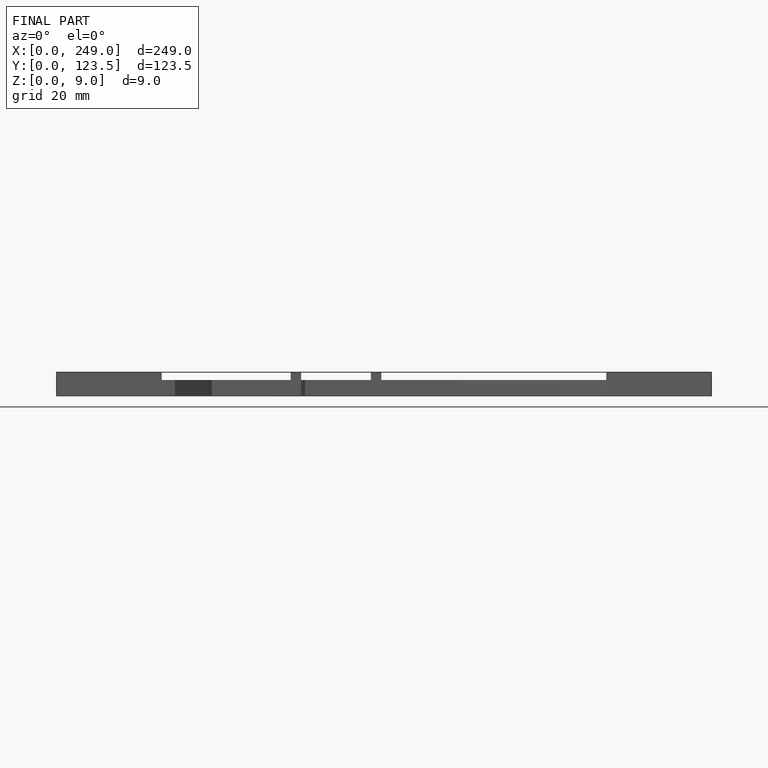
[diagram: finished part — front view with bounding-box wireframe]
